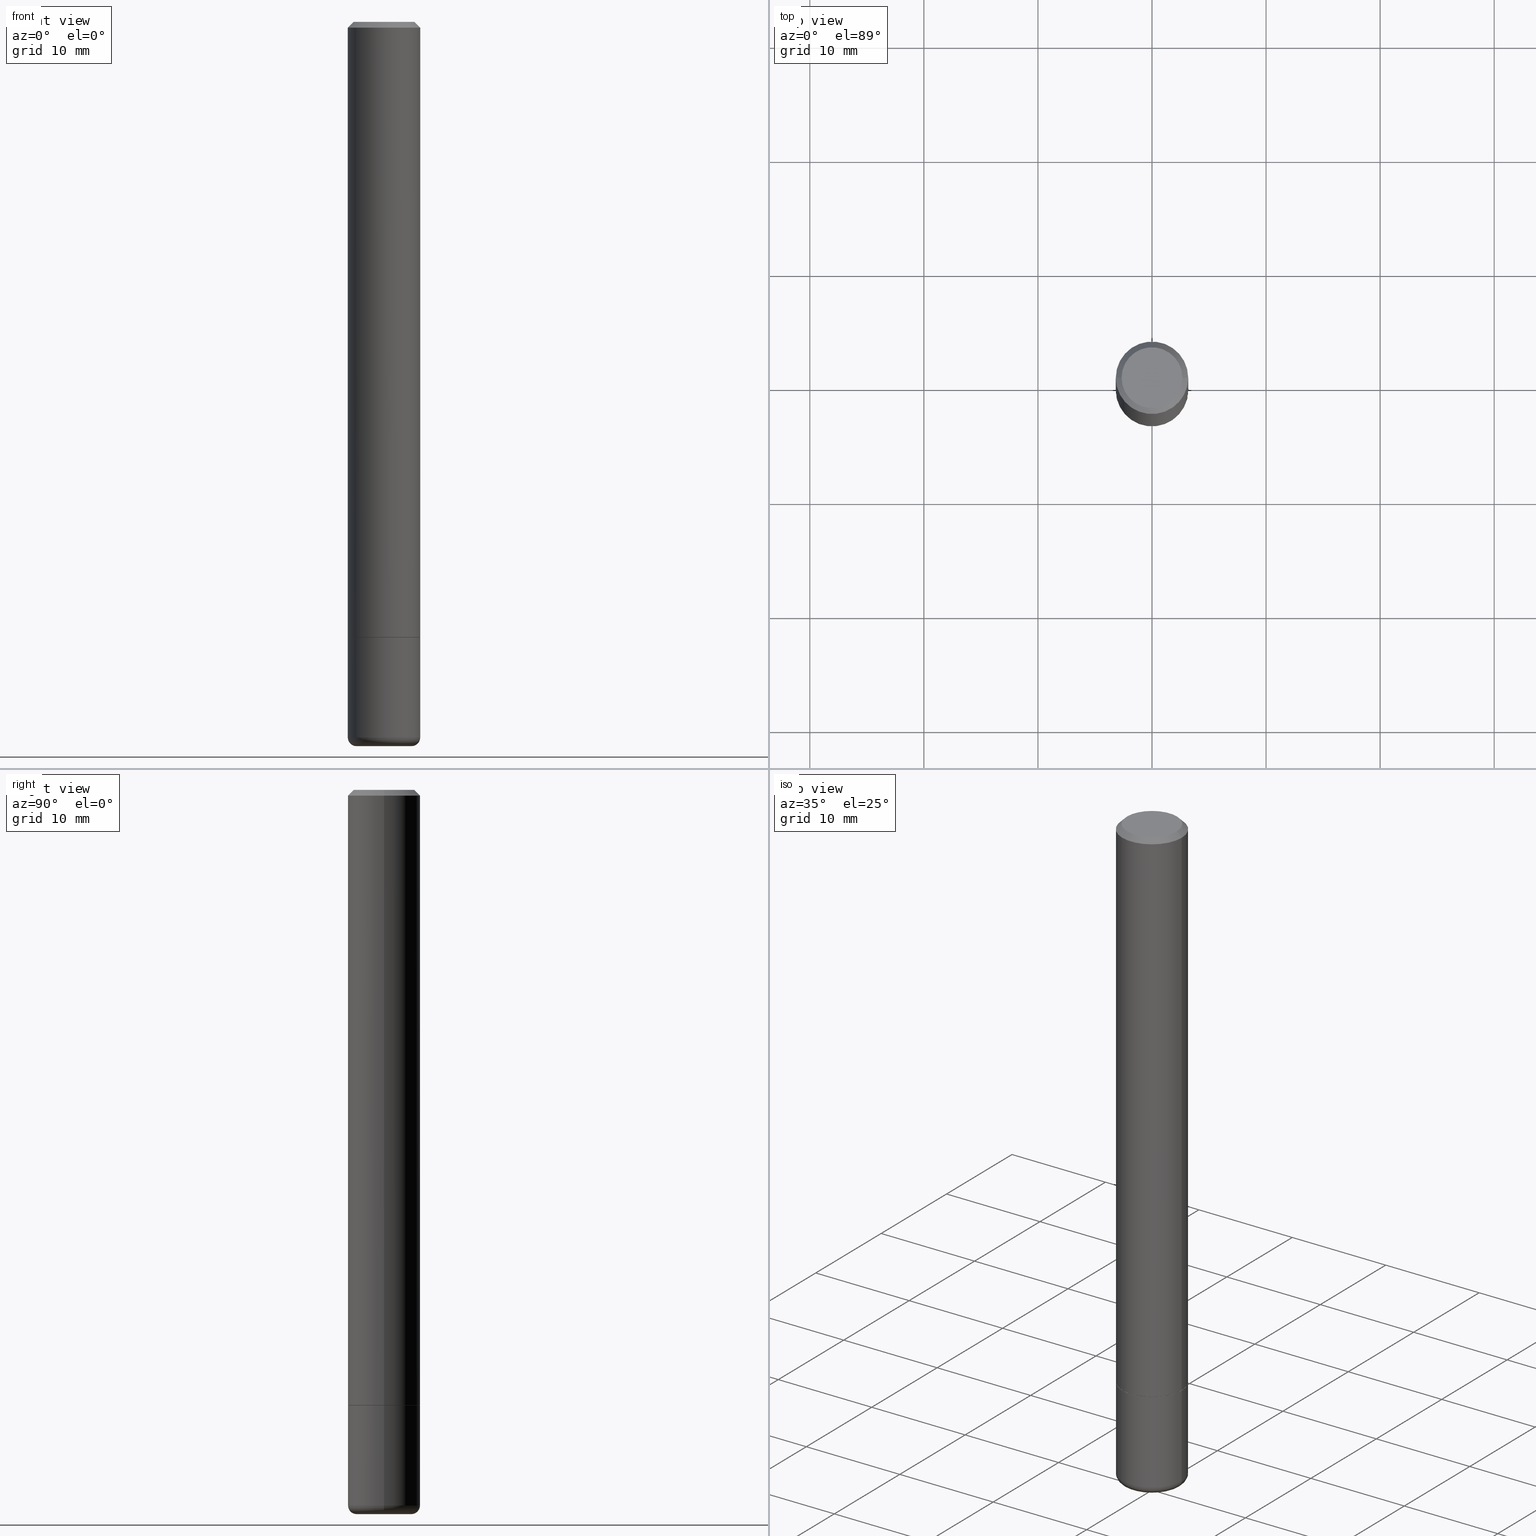
[diagram: canonical four-view strip — front | top / right | iso, engineering-drawing reading convention]
A machine part, canonical four-view strip (front | top / right | iso — engineering-drawing reading convention). The complete STEP part file that produces these views, byte-faithful:
ISO-10303-21;
HEADER;
FILE_DESCRIPTION (( 'STEP AP203' ),
    '1' );
FILE_NAME ('35577.STEP',
    '2022-11-02T20:21:32',
    ( '' ),
    ( '' ),
    'SwSTEP 2.0',
    'SolidWorks 2022',
    '' );
FILE_SCHEMA (( 'CONFIG_CONTROL_DESIGN' ));
ENDSEC;

DATA;
#1 = AXIS2_PLACEMENT_3D ( 'NONE', #217, #142, #222 ) ;
#2 = DIRECTION ( 'NONE',  ( -6.982962677686266711E-15, -1.000000000000000000, 3.491481338843145583E-15 ) ) ;
#3 = DIRECTION ( 'NONE',  ( -2.445468806185136597E-29, 3.491481338843145583E-15, 1.000000000000000000 ) ) ;
#4 = APPROVAL ( #471, 'UNSPECIFIED' ) ;
#5 = DIRECTION ( 'NONE',  ( 1.000000000000000000, -6.982962677686263555E-15, 0.000000000000000000 ) ) ;
#6 = CARTESIAN_POINT ( 'NONE',  ( 5.196621213143416389E-29, -7.419397845041686779E-15, -2.125000000000000888 ) ) ;
#7 = AXIS2_PLACEMENT_3D ( 'NONE', #277, #425, #91 ) ;
#8 = DIRECTION ( 'NONE',  ( 1.000000000000000000, -6.982962677686263555E-15, 0.000000000000000000 ) ) ;
#9 = EDGE_CURVE ( 'NONE', #301, #95, #69, .T. ) ;
#10 = EDGE_CURVE ( 'NONE', #141, #55, #275, .T. ) ;
#11 = ORIENTED_EDGE ( 'NONE', *, *, #118, .F. ) ;
#12 = DATE_AND_TIME ( #384, #199 ) ;
#13 = DIRECTION ( 'NONE',  ( 0.7071067811863059882, -2.468850131079726789E-15, 0.7071067811867890462 ) ) ;
#14 = ORIENTED_EDGE ( 'NONE', *, *, #78, .F. ) ;
#15 = PERSON_AND_ORGANIZATION ( #113, #268 ) ;
#16 = DIRECTION ( 'NONE',  ( 1.000000000000000000, -6.982962677686265922E-15, 4.876176775795935793E-29 ) ) ;
#17 = CIRCLE ( 'NONE', #229, 0.1239999999999995550 ) ;
#18 = ORIENTED_EDGE ( 'NONE', *, *, #249, .T. ) ;
#19 = CIRCLE ( 'NONE', #129, 0.08140570393504910351 ) ;
#20 = CARTESIAN_POINT ( 'NONE',  ( 0.000000000000000000, 0.000000000000000000, 0.000000000000000000 ) ) ;
#21 = ORIENTED_EDGE ( 'NONE', *, *, #249, .F. ) ;
#22 = DATE_TIME_ROLE ( 'creation_date' ) ;
#23 = EDGE_CURVE ( 'NONE', #394, #76, #346, .T. ) ;
#24 = CARTESIAN_POINT ( 'NONE',  ( 0.000000000000000000, 0.000000000000000000, 0.000000000000000000 ) ) ;
#25 = ORIENTED_EDGE ( 'NONE', *, *, #326, .T. ) ;
#26 = MECHANICAL_CONTEXT ( 'NONE', #379, 'mechanical' ) ;
#27 = CARTESIAN_POINT ( 'NONE',  ( 5.196621213143416389E-29, -7.419397845041686779E-15, -2.125000000000000888 ) ) ;
#28 = VERTEX_POINT ( 'NONE', #307 ) ;
#29 = VECTOR ( 'NONE', #467, 39.37007874015748854 ) ;
#30 = DIRECTION ( 'NONE',  ( -1.000000000000000000, 6.982962677686265922E-15, -4.876176775795935793E-29 ) ) ;
#31 = EDGE_LOOP ( 'NONE', ( #106, #186, #176, #388 ) ) ;
#32 = ORIENTED_EDGE ( 'NONE', *, *, #460, .T. ) ;
#33 = CARTESIAN_POINT ( 'NONE',  ( 1.148236555768741665E-45, -1.639377487418492057E-31, -4.695363739110452099E-17 ) ) ;
#34 = APPROVAL_DATE_TIME ( #136, #66 ) ;
#35 = CARTESIAN_POINT ( 'NONE',  ( -0.08140570393504910351, -8.159844117556212777E-15, -2.499883649035179900 ) ) ;
#36 = ORIENTED_EDGE ( 'NONE', *, *, #9, .F. ) ;
#37 = CIRCLE ( 'NONE', #1, 0.1249999999999992090 ) ;
#38 = ORIENTED_EDGE ( 'NONE', *, *, #334, .F. ) ;
#39 = EDGE_LOOP ( 'NONE', ( #38, #11 ) ) ;
#40 = EDGE_CURVE ( 'NONE', #398, #141, #415, .T. ) ;
#41 = DIRECTION ( 'NONE',  ( -1.000000000000000000, 6.982962677686263555E-15, 0.000000000000000000 ) ) ;
#42 = DIRECTION ( 'NONE',  ( 2.445468806185136597E-29, -3.491481338843145583E-15, -1.000000000000000000 ) ) ;
#43 = DIRECTION ( 'NONE',  ( -1.000000000000000000, 6.982962677686265922E-15, -4.876176775795935793E-29 ) ) ;
#44 = ADVANCED_FACE ( 'NONE', ( #194 ), #167, .T. ) ;
#45 = AXIS2_PLACEMENT_3D ( 'NONE', #455, #120, #306 ) ;
#46 = VERTEX_POINT ( 'NONE', #119 ) ;
#47 = DIRECTION ( 'NONE',  ( 2.445468806185136597E-29, -3.491481338843145583E-15, -1.000000000000000000 ) ) ;
#48 = DIRECTION ( 'NONE',  ( 1.000000000000000000, -6.982962677686264344E-15, 0.000000000000000000 ) ) ;
#49 = CIRCLE ( 'NONE', #230, 0.1249999999999992090 ) ;
#50 = AXIS2_PLACEMENT_3D ( 'NONE', #273, #197, #348 ) ;
#51 = DIRECTION ( 'NONE',  ( -2.445468806185136597E-29, 3.491481338843145583E-15, 1.000000000000000000 ) ) ;
#52 = CALENDAR_DATE ( 2022, 2, 11 ) ;
#53 = LINE ( 'NONE', #389, #332 ) ;
#54 = ORIENTED_EDGE ( 'NONE', *, *, #324, .F. ) ;
#55 = VERTEX_POINT ( 'NONE', #85 ) ;
#56 = DATE_AND_TIME ( #52, #177 ) ;
#57 = CARTESIAN_POINT ( 'NONE',  ( 1.148236555768741665E-45, -1.639377487418492057E-31, -4.695363739110452099E-17 ) ) ;
#58 = VECTOR ( 'NONE', #470, 39.37007874015748143 ) ;
#59 = EDGE_CURVE ( 'NONE', #95, #141, #201, .T. ) ;
#60 = EDGE_CURVE ( 'NONE', #141, #398, #111, .T. ) ;
#61 = LINE ( 'NONE', #428, #375 ) ;
#62 = ORIENTED_EDGE ( 'NONE', *, *, #416, .T. ) ;
#63 = DIRECTION ( 'NONE',  ( -2.445468806185136597E-29, 3.491481338843145583E-15, 1.000000000000000000 ) ) ;
#64 = EDGE_LOOP ( 'NONE', ( #409, #32, #412 ) ) ;
#65 = DIRECTION ( 'NONE',  ( 1.000000000000000000, -6.982962677686266711E-15, 4.876176775795935232E-29 ) ) ;
#66 = APPROVAL ( #181, 'UNSPECIFIED' ) ;
#67 = ORIENTED_EDGE ( 'NONE', *, *, #210, .F. ) ;
#68 = FACE_OUTER_BOUND ( 'NONE', #212, .T. ) ;
#69 = CIRCLE ( 'NONE', #439, 0.09473820393504912840 ) ;
#70 = ORIENTED_EDGE ( 'NONE', *, *, #114, .T. ) ;
#71 = EDGE_LOOP ( 'NONE', ( #223, #364, #180, #487 ) ) ;
#72 = APPLICATION_CONTEXT ( 'configuration controlled 3d designs of mechanical parts and assemblies' ) ;
#73 = DIRECTION ( 'NONE',  ( 1.000000000000000000, -6.982962677686262766E-15, 4.883557194083111780E-29 ) ) ;
#74 = MANIFOLD_SOLID_BREP ( 'Body-Move/Copy2[2]', #193 ) ;
#75 = ORIENTED_EDGE ( 'NONE', *, *, #322, .F. ) ;
#76 = VERTEX_POINT ( 'NONE', #414 ) ;
#77 = EDGE_LOOP ( 'NONE', ( #316, #242, #21, #67 ) ) ;
#78 = EDGE_CURVE ( 'NONE', #55, #28, #284, .T. ) ;
#79 = AXIS2_PLACEMENT_3D ( 'NONE', #97, #387, #276 ) ;
#80 = CARTESIAN_POINT ( 'NONE',  ( 6.113672015462842613E-29, -8.728703347107864943E-15, -2.500000000000000000 ) ) ;
#81 = CARTESIAN_POINT ( 'NONE',  ( 6.113387482807804113E-29, -8.728297109885438444E-15, -2.499883649035179900 ) ) ;
#82 = FACE_OUTER_BOUND ( 'NONE', #452, .T. ) ;
#83 = APPROVAL_PERSON_ORGANIZATION ( #330, #4, #386 ) ;
#84 = DIRECTION ( 'NONE',  ( -1.000000000000000000, 6.982962677686263555E-15, 0.000000000000000000 ) ) ;
#85 = CARTESIAN_POINT ( 'NONE',  ( -0.1249999999999995559, -7.133501950465667053E-15, -2.125000000000000000 ) ) ;
#86 = CONICAL_SURFACE ( 'NONE', #250, 0.08140570393504910351, 1.535889741755006588 ) ;
#87 = CARTESIAN_POINT ( 'NONE',  ( 5.196621213143415268E-29, -7.419397845041685201E-15, -2.125000000000000000 ) ) ;
#88 = ORIENTED_EDGE ( 'NONE', *, *, #114, .F. ) ;
#89 = CC_DESIGN_PERSON_AND_ORGANIZATION_ASSIGNMENT ( #15, #165, ( #299 ) ) ;
#90 = COORDINATED_UNIVERSAL_TIME_OFFSET ( 5, 0, .BEHIND. ) ;
#91 = DIRECTION ( 'NONE',  ( 1.000000000000000000, -6.982962677686268288E-15, 0.000000000000000000 ) ) ;
#92 = AXIS2_PLACEMENT_3D ( 'NONE', #430, #363, #16 ) ;
#93 = CYLINDRICAL_SURFACE ( 'NONE', #198, 0.1249999999999993477 ) ;
#94 = DIRECTION ( 'NONE',  ( -1.000000000000000000, 6.982962677686267499E-15, 0.000000000000000000 ) ) ;
#95 = VERTEX_POINT ( 'NONE', #227 ) ;
#96 = COORDINATED_UNIVERSAL_TIME_OFFSET ( 5, 0, .BEHIND. ) ;
#97 = CARTESIAN_POINT ( 'NONE',  ( 6.040310744756052718E-29, -8.623962895289896214E-15, -2.470001142308074993 ) ) ;
#98 = CALENDAR_DATE ( 2022, 2, 11 ) ;
#99 = CARTESIAN_POINT ( 'NONE',  ( 0.1249999999999997918, -8.728703347107818597E-16, 6.095220969744909231E-30 ) ) ;
#100 = TOROIDAL_SURFACE ( 'NONE', #79, 0.09500000000000018152, 0.02999999999999982542 ) ;
#101 =( NAMED_UNIT ( * ) PLANE_ANGLE_UNIT ( ) SI_UNIT ( $, .RADIAN. ) );
#102 = DIRECTION ( 'NONE',  ( -2.445468806185136597E-29, 3.491481338843145583E-15, 1.000000000000000000 ) ) ;
#103 = EDGE_CURVE ( 'NONE', #464, #153, #475, .T. ) ;
#104 = DIRECTION ( 'NONE',  ( -1.000000000000000000, 6.982962677686267499E-15, 0.000000000000000000 ) ) ;
#105 = ORIENTED_EDGE ( 'NONE', *, *, #59, .T. ) ;
#106 = ORIENTED_EDGE ( 'NONE', *, *, #322, .T. ) ;
#107 = CARTESIAN_POINT ( 'NONE',  ( -0.1239999999999995550, -6.538324852699165710E-15, -2.125000000000000888 ) ) ;
#108 = VERTEX_POINT ( 'NONE', #310 ) ;
#109 = AXIS2_PLACEMENT_3D ( 'NONE', #206, #171, #354 ) ;
#110 = LINE ( 'NONE', #263, #156 ) ;
#111 = CIRCLE ( 'NONE', #50, 0.1250000000000000278 ) ;
#112 = APPROVAL_ROLE ( '' ) ;
#113 = PERSON ( 'UNSPECIFIED', 'UNSPECIFIED', 'UNSPECIFIED', ('UNSPECIFIED'), ('UNSPECIFIED'), ('UNSPECIFIED') ) ;
#114 = EDGE_CURVE ( 'NONE', #301, #398, #401, .T. ) ;
#115 = CARTESIAN_POINT ( 'NONE',  ( 5.196621213143416389E-29, -7.419397845041686779E-15, -2.125000000000000888 ) ) ;
#116 = APPROVAL_PERSON_ORGANIZATION ( #395, #151, #328 ) ;
#117 = DIRECTION ( 'NONE',  ( 1.000000000000000000, -6.982962677686257244E-15, 0.000000000000000000 ) ) ;
#118 = EDGE_CURVE ( 'NONE', #443, #302, #137, .T. ) ;
#119 = CARTESIAN_POINT ( 'NONE',  ( 0.1049999999999992190, -8.238720831321523396E-16, -4.695363739109907908E-17 ) ) ;
#120 = DIRECTION ( 'NONE',  ( -2.445468806185136597E-29, 3.491481338843145583E-15, 1.000000000000000000 ) ) ;
#121 = AXIS2_PLACEMENT_3D ( 'NONE', #57, #51, #244 ) ;
#122 = PRODUCT_DEFINITION_FORMATION_WITH_SPECIFIED_SOURCE ( 'ANY', '', #476, .NOT_KNOWN. ) ;
#123 = CARTESIAN_POINT ( 'NONE',  ( 6.113387482807804113E-29, -8.728297109885438444E-15, -2.499883649035179900 ) ) ;
#124 = FACE_OUTER_BOUND ( 'NONE', #257, .T. ) ;
#125 = CC_DESIGN_PERSON_AND_ORGANIZATION_ASSIGNMENT ( #424, #246, ( #174 ) ) ;
#126 = DIRECTION ( 'NONE',  ( -2.445468806185136597E-29, 3.491481338843145583E-15, 1.000000000000000000 ) ) ;
#127 = PERSON_AND_ORGANIZATION ( #113, #268 ) ;
#128 = FACE_OUTER_BOUND ( 'NONE', #224, .T. ) ;
#129 = AXIS2_PLACEMENT_3D ( 'NONE', #200, #352, #8 ) ;
#130 = DIRECTION ( 'NONE',  ( -2.445468806185136597E-29, 3.491481338843145583E-15, 1.000000000000000000 ) ) ;
#131 = CONICAL_SURFACE ( 'NONE', #293, 0.09473820393504912840, 1.562069680534929894 ) ;
#132 = DIRECTION ( 'NONE',  ( 1.000000000000000000, -6.982962677686265922E-15, 4.876176775795935793E-29 ) ) ;
#133 = CARTESIAN_POINT ( 'NONE',  ( 0.000000000000000000, 0.000000000000000000, 0.000000000000000000 ) ) ;
#134 = FACE_OUTER_BOUND ( 'NONE', #450, .T. ) ;
#135 = AXIS2_PLACEMENT_3D ( 'NONE', #406, #438, #104 ) ;
#136 = DATE_AND_TIME ( #291, #319 ) ;
#137 = CIRCLE ( 'NONE', #461, 0.1239999999999995550 ) ;
#138 = ADVANCED_FACE ( 'NONE', ( #344 ), #160, .F. ) ;
#139 = CARTESIAN_POINT ( 'NONE',  ( 7.332110811570524037E-16, 0.1049999999999992190, -3.900823592740798305E-16 ) ) ;
#140 = DIRECTION ( 'NONE',  ( 1.000000000000000000, -6.982962677686267499E-15, 4.874400871621274649E-29 ) ) ;
#141 = VERTEX_POINT ( 'NONE', #456 ) ;
#142 = DIRECTION ( 'NONE',  ( -2.445468806185136597E-29, 3.491481338843145583E-15, 1.000000000000000000 ) ) ;
#143 = LOCAL_TIME ( 16, 21, 32.00000000000000000, #96 ) ;
#144 = ADVANCED_FACE ( 'NONE', ( #82 ), #131, .F. ) ;
#145 = AXIS2_PLACEMENT_3D ( 'NONE', #150, #228, #5 ) ;
#146 = ADVANCED_FACE ( 'NONE', ( #226 ), #419, .F. ) ;
#147 = ORIENTED_EDGE ( 'NONE', *, *, #416, .F. ) ;
#148 = ORIENTED_EDGE ( 'NONE', *, *, #380, .F. ) ;
#149 = ORIENTED_EDGE ( 'NONE', *, *, #103, .T. ) ;
#150 = CARTESIAN_POINT ( 'NONE',  ( 6.113387482807804113E-29, -8.728297109885438444E-15, -2.499883649035179900 ) ) ;
#151 = APPROVAL ( #170, 'UNSPECIFIED' ) ;
#152 = TOROIDAL_SURFACE ( 'NONE', #426, 0.09500000000000018152, 0.02999999999999982542 ) ;
#153 = VERTEX_POINT ( 'NONE', #235 ) ;
#154 = DIRECTION ( 'NONE',  ( -2.445468806185136597E-29, 3.491481338843145583E-15, 1.000000000000000000 ) ) ;
#155 = CARTESIAN_POINT ( 'NONE',  ( 5.196621213143415268E-29, -7.419397845041685201E-15, -2.125000000000000000 ) ) ;
#156 = VECTOR ( 'NONE', #289, 39.37007874015748143 ) ;
#157 = ADVANCED_FACE ( 'NONE', ( #190 ), #86, .F. ) ;
#158 = DIRECTION ( 'NONE',  ( -2.445468806185136597E-29, 3.491481338843145583E-15, 1.000000000000000000 ) ) ;
#159 = ADVANCED_FACE ( 'NONE', ( #304 ), #219, .T. ) ;
#160 = CONICAL_SURFACE ( 'NONE', #323, 0.08140570393504910351, 1.535889741755006588 ) ;
#161 = CARTESIAN_POINT ( 'NONE',  ( 4.890937612370296805E-31, -6.982962677686323656E-17, -0.02000000000000009409 ) ) ;
#162 = EDGE_LOOP ( 'NONE', ( #18, #342 ) ) ;
#163 = APPROVAL_DATE_TIME ( #12, #151 ) ;
#164 = LINE ( 'NONE', #315, #29 ) ;
#165 = PERSON_AND_ORGANIZATION_ROLE ( 'classification_officer' ) ;
#166 = DIRECTION ( 'NONE',  ( -0.7071067811865465735, 2.468850131082246805E-15, -0.7071067811865484609 ) ) ;
#167 = CONICAL_SURFACE ( 'NONE', #321, 0.1239999999999995550, 0.7853981633971067744 ) ;
#168 = DIRECTION ( 'NONE',  ( -2.445468806185136597E-29, 3.491481338843145583E-15, 1.000000000000000000 ) ) ;
#169 = ORIENTED_EDGE ( 'NONE', *, *, #221, .T. ) ;
#170 = APPROVAL_STATUS ( 'not_yet_approved' ) ;
#171 = DIRECTION ( 'NONE',  ( 2.445468806185136597E-29, -3.491481338843145583E-15, -1.000000000000000000 ) ) ;
#172 = DIRECTION ( 'NONE',  ( 1.000000000000000000, -6.982962677686265922E-15, 4.876176775795935793E-29 ) ) ;
#173 = CARTESIAN_POINT ( 'NONE',  ( 0.1249999999999992090, -9.273918764982992215E-16, -0.02000000000000009409 ) ) ;
#174 = PRODUCT_DEFINITION ( 'UNKNOWN', '', #122, #453 ) ;
#175 = VECTOR ( 'NONE', #13, 39.37007874015748143 ) ;
#176 = ORIENTED_EDGE ( 'NONE', *, *, #437, .F. ) ;
#177 = LOCAL_TIME ( 16, 21, 32.00000000000000000, #90 ) ;
#178 = COORDINATED_UNIVERSAL_TIME_OFFSET ( 5, 0, .BEHIND. ) ;
#179 = DIRECTION ( 'NONE',  ( -2.445468806185136597E-29, 3.491481338843145583E-15, 1.000000000000000000 ) ) ;
#180 = ORIENTED_EDGE ( 'NONE', *, *, #370, .F. ) ;
#181 = APPROVAL_STATUS ( 'not_yet_approved' ) ;
#182 = DIRECTION ( 'NONE',  ( -2.445468806185136597E-29, 3.491481338843145583E-15, 1.000000000000000000 ) ) ;
#183 = ORIENTED_EDGE ( 'NONE', *, *, #210, .T. ) ;
#184 = EDGE_CURVE ( 'NONE', #108, #312, #53, .T. ) ;
#185 = CARTESIAN_POINT ( 'NONE',  ( 6.106435626793264299E-29, -8.718371701929425383E-15, -2.497040899212750187 ) ) ;
#186 = ORIENTED_EDGE ( 'NONE', *, *, #380, .T. ) ;
#187 = AXIS2_PLACEMENT_3D ( 'NONE', #24, #130, #325 ) ;
#188 = ORIENTED_EDGE ( 'NONE', *, *, #9, .T. ) ;
#189 = EDGE_CURVE ( 'NONE', #108, #46, #192, .T. ) ;
#190 = FACE_OUTER_BOUND ( 'NONE', #64, .T. ) ;
#191 = DIRECTION ( 'NONE',  ( -2.445468806185136877E-29, 3.491481338843145188E-15, 1.000000000000000000 ) ) ;
#192 = CIRCLE ( 'NONE', #121, 0.1049999999999992190 ) ;
#193 = CLOSED_SHELL ( 'NONE', ( #440, #239, #159, #234, #478, #44, #231, #457 ) ) ;
#194 = FACE_OUTER_BOUND ( 'NONE', #295, .T. ) ;
#195 = DIRECTION ( 'NONE',  ( 7.105427357601001859E-15, 1.000000000000000000, -3.491481338843145583E-15 ) ) ;
#196 = ADVANCED_FACE ( 'NONE', ( #205 ), #360, .T. ) ;
#197 = DIRECTION ( 'NONE',  ( -2.445468806185136597E-29, 3.491481338843145583E-15, 1.000000000000000000 ) ) ;
#198 = AXIS2_PLACEMENT_3D ( 'NONE', #133, #358, #172 ) ;
#199 = LOCAL_TIME ( 16, 21, 32.00000000000000000, #473 ) ;
#200 = CARTESIAN_POINT ( 'NONE',  ( 6.113387482807804113E-29, -8.728297109885438444E-15, -2.499883649035179900 ) ) ;
#201 = CIRCLE ( 'NONE', #270, 0.02999999999999981501 ) ;
#202 = APPLICATION_PROTOCOL_DEFINITION ( 'international standard', 'config_control_design', 1994, #72 ) ;
#203 = EDGE_CURVE ( 'NONE', #355, #394, #281, .T. ) ;
#204 =( NAMED_UNIT ( * ) SI_UNIT ( $, .STERADIAN. ) SOLID_ANGLE_UNIT ( ) );
#205 = FACE_OUTER_BOUND ( 'NONE', #259, .T. ) ;
#206 = CARTESIAN_POINT ( 'NONE',  ( 4.890937612370296805E-31, -6.982962677686323656E-17, -0.02000000000000009409 ) ) ;
#207 = VECTOR ( 'NONE', #432, 39.37007874015748143 ) ;
#208 = DIMENSIONAL_EXPONENTS ( 1.000000000000000000, 0.000000000000000000, 0.000000000000000000, 0.000000000000000000, 0.000000000000000000, 0.000000000000000000, 0.000000000000000000 ) ;
#209 = DIRECTION ( 'NONE',  ( 1.000000000000000000, 0.000000000000000000, 0.000000000000000000 ) ) ;
#210 = EDGE_CURVE ( 'NONE', #398, #28, #462, .T. ) ;
#211 = DIRECTION ( 'NONE',  ( 0.9999619230641714207, -6.890705306874825328E-15, -0.008726535498369011531 ) ) ;
#212 = EDGE_LOOP ( 'NONE', ( #298, #62, #75, #54 ) ) ;
#213 = APPLICATION_PROTOCOL_DEFINITION ( 'international standard', 'config_control_design', 1994, #379 ) ;
#214 = CC_DESIGN_PERSON_AND_ORGANIZATION_ASSIGNMENT ( #251, #283, ( #476 ) ) ;
#215 = CARTESIAN_POINT ( 'NONE',  ( 6.113672015462842613E-29, -8.728703347107864943E-15, -2.500000000000000000 ) ) ;
#216 = ADVANCED_BREP_SHAPE_REPRESENTATION ( '35577', ( #393, #74, #318 ), #480 ) ;
#217 = CARTESIAN_POINT ( 'NONE',  ( 4.890937612370296805E-31, -6.982962677686323656E-17, -0.02000000000000009409 ) ) ;
#218 = EDGE_LOOP ( 'NONE', ( #314, #265 ) ) ;
#219 = CONICAL_SURFACE ( 'NONE', #366, 0.1249999999999992090, 0.7853981633974469467 ) ;
#220 = DIRECTION ( 'NONE',  ( 1.000000000000000000, -6.982962677686263555E-15, 0.000000000000000000 ) ) ;
#221 = EDGE_CURVE ( 'NONE', #312, #369, #49, .T. ) ;
#222 = DIRECTION ( 'NONE',  ( 1.000000000000000000, -6.982962677686267499E-15, 0.000000000000000000 ) ) ;
#223 = ORIENTED_EDGE ( 'NONE', *, *, #23, .T. ) ;
#224 = EDGE_LOOP ( 'NONE', ( #390, #400, #405, #169 ) ) ;
#225 = VECTOR ( 'NONE', #356, 39.37007874015748143 ) ;
#226 = FACE_OUTER_BOUND ( 'NONE', #162, .T. ) ;
#227 = CARTESIAN_POINT ( 'NONE',  ( -0.09473820393504912840, -7.895666198323776938E-15, -2.500000000000000000 ) ) ;
#228 = DIRECTION ( 'NONE',  ( -2.445468806185136597E-29, 3.491481338843145583E-15, 1.000000000000000000 ) ) ;
#229 = AXIS2_PLACEMENT_3D ( 'NONE', #27, #102, #220 ) ;
#230 = AXIS2_PLACEMENT_3D ( 'NONE', #161, #241, #311 ) ;
#231 = ADVANCED_FACE ( 'NONE', ( #247 ), #472, .F. ) ;
#232 = DIRECTION ( 'NONE',  ( -1.000000000000000000, 6.982962677686267499E-15, 0.000000000000000000 ) ) ;
#233 = ADVANCED_FACE ( 'NONE', ( #124 ), #100, .T. ) ;
#234 = ADVANCED_FACE ( 'NONE', ( #128 ), #435, .T. ) ;
#235 = CARTESIAN_POINT ( 'NONE',  ( 0.1249999999999994865, -8.288776698413622377E-15, -2.124000000000000110 ) ) ;
#236 = CARTESIAN_POINT ( 'NONE',  ( 0.09473820393504912840, -9.390256689337342116E-15, -2.500000000000000000 ) ) ;
#237 = ORIENTED_EDGE ( 'NONE', *, *, #286, .F. ) ;
#238 = DATE_AND_TIME ( #98, #143 ) ;
#239 = ADVANCED_FACE ( 'NONE', ( #423 ), #279, .T. ) ;
#240 = LINE ( 'NONE', #385, #175 ) ;
#241 = DIRECTION ( 'NONE',  ( -2.445468806185136597E-29, 3.491481338843145583E-15, 1.000000000000000000 ) ) ;
#242 = ORIENTED_EDGE ( 'NONE', *, *, #10, .T. ) ;
#243 = CALENDAR_DATE ( 2022, 2, 11 ) ;
#244 = DIRECTION ( 'NONE',  ( 1.000000000000000000, -6.982962677686267499E-15, 4.874400871621274649E-29 ) ) ;
#245 = EDGE_LOOP ( 'NONE', ( #287, #339, #264, #353 ) ) ;
#246 = PERSON_AND_ORGANIZATION_ROLE ( 'creator' ) ;
#247 = FACE_OUTER_BOUND ( 'NONE', #39, .T. ) ;
#248 = VECTOR ( 'NONE', #329, 39.37007874015748143 ) ;
#249 = EDGE_CURVE ( 'NONE', #28, #55, #309, .T. ) ;
#250 = AXIS2_PLACEMENT_3D ( 'NONE', #81, #492, #84 ) ;
#251 = PERSON_AND_ORGANIZATION ( #113, #268 ) ;
#252 = DIRECTION ( 'NONE',  ( -2.445468806185136597E-29, 3.491481338843145583E-15, 1.000000000000000000 ) ) ;
#253 = ORIENTED_EDGE ( 'NONE', *, *, #60, .F. ) ;
#254 = ORIENTED_EDGE ( 'NONE', *, *, #103, .F. ) ;
#255 = ORIENTED_EDGE ( 'NONE', *, *, #59, .F. ) ;
#256 = LINE ( 'NONE', #367, #404 ) ;
#257 = EDGE_LOOP ( 'NONE', ( #255, #397, #70, #253 ) ) ;
#258 = FACE_OUTER_BOUND ( 'NONE', #77, .T. ) ;
#259 = EDGE_LOOP ( 'NONE', ( #446, #282, #183, #14 ) ) ;
#260 = CONICAL_SURFACE ( 'NONE', #135, 0.09473820393504912840, 1.562069680534929894 ) ;
#261 = PERSON_AND_ORGANIZATION ( #113, #268 ) ;
#262 = CLOSED_SHELL ( 'NONE', ( #477, #422, #372, #157, #138, #146, #196, #233, #144 ) ) ;
#263 = CARTESIAN_POINT ( 'NONE',  ( 0.08140570393504910351, -9.286780778739024445E-15, -2.499883649035179900 ) ) ;
#264 = ORIENTED_EDGE ( 'NONE', *, *, #437, .T. ) ;
#265 = ORIENTED_EDGE ( 'NONE', *, *, #408, .T. ) ;
#266 = UNCERTAINTY_MEASURE_WITH_UNIT (LENGTH_MEASURE( 1.000000000000000082E-05 ), #434, 'distance_accuracy_value', 'NONE');
#267 = CARTESIAN_POINT ( 'NONE',  ( 6.113672015462842613E-29, -8.728703347107864943E-15, -2.500000000000000000 ) ) ;
#268 = ORGANIZATION ( 'UNSPECIFIED', 'UNSPECIFIED', '' ) ;
#269 = EDGE_CURVE ( 'NONE', #153, #369, #392, .T. ) ;
#270 = AXIS2_PLACEMENT_3D ( 'NONE', #271, #195, #272 ) ;
#271 = CARTESIAN_POINT ( 'NONE',  ( -0.09500000000000018152, -7.948947296317799649E-15, -2.470001142308074993 ) ) ;
#272 = DIRECTION ( 'NONE',  ( -1.000000000000000000, 7.105427357601001859E-15, 0.000000000000000000 ) ) ;
#273 = CARTESIAN_POINT ( 'NONE',  ( 6.040310744756052718E-29, -8.623962895289896214E-15, -2.470001142308074993 ) ) ;
#274 = AXIS2_PLACEMENT_3D ( 'NONE', #87, #126, #48 ) ;
#275 = LINE ( 'NONE', #454, #361 ) ;
#276 = DIRECTION ( 'NONE',  ( 1.000000000000000000, -6.982962677686262766E-15, 4.883557194083111780E-29 ) ) ;
#277 = CARTESIAN_POINT ( 'NONE',  ( 5.194175744337230786E-29, -7.415906363702842194E-15, -2.124000000000000110 ) ) ;
#278 = SECURITY_CLASSIFICATION_LEVEL ( 'unclassified' ) ;
#279 = CYLINDRICAL_SURFACE ( 'NONE', #382, 0.1249999999999993477 ) ;
#280 = PERSON_AND_ORGANIZATION_ROLE ( 'design_supplier' ) ;
#281 = LINE ( 'NONE', #320, #58 ) ;
#282 = ORIENTED_EDGE ( 'NONE', *, *, #60, .T. ) ;
#283 = PERSON_AND_ORGANIZATION_ROLE ( 'design_owner' ) ;
#284 = CIRCLE ( 'NONE', #411, 0.1249999999999995559 ) ;
#285 = CARTESIAN_POINT ( 'NONE',  ( 0.1249999999999993477, -8.728703347107787043E-16, 6.095220969744888212E-30 ) ) ;
#286 = EDGE_CURVE ( 'NONE', #76, #301, #61, .T. ) ;
#287 = ORIENTED_EDGE ( 'NONE', *, *, #408, .F. ) ;
#288 =( LENGTH_UNIT ( ) NAMED_UNIT ( * ) SI_UNIT ( $, .METRE. ) );
#289 = DIRECTION ( 'NONE',  ( 0.9993908270190955401, -6.978169709227551743E-15, -0.03489949670250441088 ) ) ;
#290 = AXIS2_PLACEMENT_3D ( 'NONE', #139, #447, #30 ) ;
#291 = CALENDAR_DATE ( 2022, 2, 11 ) ;
#292 = CARTESIAN_POINT ( 'NONE',  ( -0.1249999999999994865, -2.854689575539726725E-15, -2.124000000000000110 ) ) ;
#293 = AXIS2_PLACEMENT_3D ( 'NONE', #80, #47, #232 ) ;
#294 = DIRECTION ( 'NONE',  ( 0.7071067811865465735, -7.319954787623252890E-15, -0.7071067811865484609 ) ) ;
#295 = EDGE_LOOP ( 'NONE', ( #147, #483, #491, #254 ) ) ;
#296 = FACE_OUTER_BOUND ( 'NONE', #218, .T. ) ;
#297 = CONICAL_SURFACE ( 'NONE', #468, 0.1239999999999995550, 0.7853981633971067744 ) ;
#298 = ORIENTED_EDGE ( 'NONE', *, *, #334, .T. ) ;
#299 = SECURITY_CLASSIFICATION ( '', '', #278 ) ;
#300 = ORIENTED_EDGE ( 'NONE', *, *, #203, .T. ) ;
#301 = VERTEX_POINT ( 'NONE', #236 ) ;
#302 = VERTEX_POINT ( 'NONE', #381 ) ;
#303 = EDGE_CURVE ( 'NONE', #76, #394, #19, .T. ) ;
#304 = FACE_OUTER_BOUND ( 'NONE', #245, .T. ) ;
#305 = AXIS2_PLACEMENT_3D ( 'NONE', #33, #252, #140 ) ;
#306 = DIRECTION ( 'NONE',  ( 1.000000000000000000, -6.982962677686261189E-15, 0.000000000000000000 ) ) ;
#307 = CARTESIAN_POINT ( 'NONE',  ( 0.1249999999999995559, -8.292268179752463807E-15, -2.125000000000000000 ) ) ;
#308 = CARTESIAN_POINT ( 'NONE',  ( 0.09500000000000018152, -9.287344349670094392E-15, -2.470001142308074993 ) ) ;
#309 = CIRCLE ( 'NONE', #274, 0.1249999999999995559 ) ;
#310 = CARTESIAN_POINT ( 'NONE',  ( -0.1049999999999992190, 7.681258945454834611E-16, -4.695363739110977184E-17 ) ) ;
#311 = DIRECTION ( 'NONE',  ( 1.000000000000000000, -6.982962677686267499E-15, 0.000000000000000000 ) ) ;
#312 = VERTEX_POINT ( 'NONE', #463 ) ;
#313 = PERSON_AND_ORGANIZATION ( #113, #268 ) ;
#314 = ORIENTED_EDGE ( 'NONE', *, *, #189, .T. ) ;
#315 = CARTESIAN_POINT ( 'NONE',  ( -0.09473820393504912840, -8.067150004878386191E-15, -2.500000000000000000 ) ) ;
#316 = ORIENTED_EDGE ( 'NONE', *, *, #40, .T. ) ;
#317 = COORDINATED_UNIVERSAL_TIME_OFFSET ( 5, 0, .BEHIND. ) ;
#318 = AXIS2_PLACEMENT_3D ( 'NONE', #429, #431, #209 ) ;
#319 = LOCAL_TIME ( 16, 21, 32.00000000000000000, #178 ) ;
#320 = CARTESIAN_POINT ( 'NONE',  ( -0.08140570393504910351, -8.159844117556212777E-15, -2.499883649035179900 ) ) ;
#321 = AXIS2_PLACEMENT_3D ( 'NONE', #6, #378, #349 ) ;
#322 = EDGE_CURVE ( 'NONE', #153, #464, #350, .T. ) ;
#323 = AXIS2_PLACEMENT_3D ( 'NONE', #123, #418, #41 ) ;
#324 = EDGE_CURVE ( 'NONE', #302, #153, #240, .T. ) ;
#325 = DIRECTION ( 'NONE',  ( 1.000000000000000000, -6.982962677686266711E-15, 4.876176775795935232E-29 ) ) ;
#326 = EDGE_CURVE ( 'NONE', #394, #95, #164, .T. ) ;
#327 = EDGE_LOOP ( 'NONE', ( #148, #149, #486, #444 ) ) ;
#328 = APPROVAL_ROLE ( '' ) ;
#329 = DIRECTION ( 'NONE',  ( -0.7071067811863059882, 7.493145998869481680E-15, 0.7071067811867890462 ) ) ;
#330 = PERSON_AND_ORGANIZATION ( #113, #268 ) ;
#331 = PLANE ( 'NONE',  #290 ) ;
#332 = VECTOR ( 'NONE', #166, 39.37007874015748143 ) ;
#333 = APPROVAL_PERSON_ORGANIZATION ( #261, #66, #112 ) ;
#334 = EDGE_CURVE ( 'NONE', #302, #443, #17, .T. ) ;
#335 = ORIENTED_EDGE ( 'NONE', *, *, #460, .F. ) ;
#336 = LINE ( 'NONE', #482, #489 ) ;
#337 = ORIENTED_EDGE ( 'NONE', *, *, #40, .F. ) ;
#338 = CARTESIAN_POINT ( 'NONE',  ( 5.196621213143416389E-29, -7.419397845041686779E-15, -2.125000000000000888 ) ) ;
#339 = ORIENTED_EDGE ( 'NONE', *, *, #357, .T. ) ;
#340 = CARTESIAN_POINT ( 'NONE',  ( 0.000000000000000000, 0.000000000000000000, 0.000000000000000000 ) ) ;
#341 = AXIS2_PLACEMENT_3D ( 'NONE', #215, #179, #365 ) ;
#342 = ORIENTED_EDGE ( 'NONE', *, *, #78, .T. ) ;
#343 = CC_DESIGN_PERSON_AND_ORGANIZATION_ASSIGNMENT ( #313, #466, ( #122 ) ) ;
#344 = FACE_OUTER_BOUND ( 'NONE', #433, .T. ) ;
#345 = DIRECTION ( 'NONE',  ( 1.000000000000000000, -6.982962677686264344E-15, 0.000000000000000000 ) ) ;
#346 = CIRCLE ( 'NONE', #145, 0.08140570393504910351 ) ;
#347 = DIRECTION ( 'NONE',  ( 1.000000000000000000, -6.982962677686268288E-15, 0.000000000000000000 ) ) ;
#348 = DIRECTION ( 'NONE',  ( 1.000000000000000000, -6.982962677686261189E-15, 0.000000000000000000 ) ) ;
#349 = DIRECTION ( 'NONE',  ( 1.000000000000000000, -6.982962677686263555E-15, 0.000000000000000000 ) ) ;
#350 = CIRCLE ( 'NONE', #7, 0.1249999999999994865 ) ;
#351 = CC_DESIGN_PERSON_AND_ORGANIZATION_ASSIGNMENT ( #127, #280, ( #122 ) ) ;
#352 = DIRECTION ( 'NONE',  ( -2.445468806185136597E-29, 3.491481338843145583E-15, 1.000000000000000000 ) ) ;
#353 = ORIENTED_EDGE ( 'NONE', *, *, #184, .F. ) ;
#354 = DIRECTION ( 'NONE',  ( -1.000000000000000000, 6.982962677686267499E-15, 0.000000000000000000 ) ) ;
#355 = VERTEX_POINT ( 'NONE', #185 ) ;
#356 = DIRECTION ( 'NONE',  ( -2.445468806185136877E-29, 3.491481338843145188E-15, 1.000000000000000000 ) ) ;
#357 = EDGE_CURVE ( 'NONE', #46, #369, #256, .T. ) ;
#358 = DIRECTION ( 'NONE',  ( -2.445468806185136597E-29, 3.491481338843145583E-15, 1.000000000000000000 ) ) ;
#359 = AXIS2_PLACEMENT_3D ( 'NONE', #340, #445, #65 ) ;
#360 = CYLINDRICAL_SURFACE ( 'NONE', #187, 0.1249999999999997918 ) ;
#361 = VECTOR ( 'NONE', #191, 39.37007874015748143 ) ;
#362 = APPROVAL_DATE_TIME ( #238, #4 ) ;
#363 = DIRECTION ( 'NONE',  ( -2.438088387897960049E-29, 3.491481338843145188E-15, 1.000000000000000000 ) ) ;
#364 = ORIENTED_EDGE ( 'NONE', *, *, #286, .T. ) ;
#365 = DIRECTION ( 'NONE',  ( 1.000000000000000000, -6.982962677686257244E-15, 0.000000000000000000 ) ) ;
#366 = AXIS2_PLACEMENT_3D ( 'NONE', #373, #42, #94 ) ;
#367 = CARTESIAN_POINT ( 'NONE',  ( 0.1249999999999992090, -9.273918764982992215E-16, -0.02000000000000009409 ) ) ;
#368 = LINE ( 'NONE', #107, #248 ) ;
#369 = VERTEX_POINT ( 'NONE', #173 ) ;
#370 = EDGE_CURVE ( 'NONE', #95, #301, #391, .T. ) ;
#371 = CARTESIAN_POINT ( 'NONE',  ( 5.194175744337230786E-29, -7.415906363702842194E-15, -2.124000000000000110 ) ) ;
#372 = ADVANCED_FACE ( 'NONE', ( #258 ), #403, .T. ) ;
#373 = CARTESIAN_POINT ( 'NONE',  ( 4.890937612370296805E-31, -6.982962677686323656E-17, -0.02000000000000009409 ) ) ;
#374 = CARTESIAN_POINT ( 'NONE',  ( 8.728703347108319524E-16, 0.1249999999999921313, -2.125000000000000888 ) ) ;
#375 = VECTOR ( 'NONE', #211, 39.37007874015748854 ) ;
#376 = DIRECTION ( 'NONE',  ( 1.000000000000000000, -6.982962677686246200E-15, 0.000000000000000000 ) ) ;
#377 = AXIS2_PLACEMENT_3D ( 'NONE', #374, #421, #43 ) ;
#378 = DIRECTION ( 'NONE',  ( -2.445468806185136597E-29, 3.491481338843145583E-15, 1.000000000000000000 ) ) ;
#379 = APPLICATION_CONTEXT ( 'configuration controlled 3d designs of mechanical parts and assemblies' ) ;
#380 = EDGE_CURVE ( 'NONE', #464, #312, #336, .T. ) ;
#381 = CARTESIAN_POINT ( 'NONE',  ( 0.1239999999999995550, -8.285285217074779370E-15, -2.125000000000000888 ) ) ;
#382 = AXIS2_PLACEMENT_3D ( 'NONE', #20, #168, #132 ) ;
#383 = CC_DESIGN_APPROVAL ( #151, ( #122 ) ) ;
#384 = CALENDAR_DATE ( 2022, 2, 11 ) ;
#385 = CARTESIAN_POINT ( 'NONE',  ( 0.1239999999999995550, -8.285285217074779370E-15, -2.125000000000000888 ) ) ;
#386 = APPROVAL_ROLE ( '' ) ;
#387 = DIRECTION ( 'NONE',  ( -2.445468806185136597E-29, 3.491481338843145583E-15, 1.000000000000000000 ) ) ;
#388 = ORIENTED_EDGE ( 'NONE', *, *, #269, .F. ) ;
#389 = CARTESIAN_POINT ( 'NONE',  ( -0.1249999999999992090, 8.030407079339147158E-16, -0.02000000000000009409 ) ) ;
#390 = ORIENTED_EDGE ( 'NONE', *, *, #357, .F. ) ;
#391 = CIRCLE ( 'NONE', #341, 0.09473820393504912840 ) ;
#392 = LINE ( 'NONE', #285, #207 ) ;
#393 = MANIFOLD_SOLID_BREP ( 'Body-Move/Copy2[1]', #262 ) ;
#394 = VERTEX_POINT ( 'NONE', #35 ) ;
#395 = PERSON_AND_ORGANIZATION ( #113, #268 ) ;
#396 = CARTESIAN_POINT ( 'NONE',  ( 6.040310744756052718E-29, -8.623962895289896214E-15, -2.470001142308074993 ) ) ;
#397 = ORIENTED_EDGE ( 'NONE', *, *, #370, .T. ) ;
#398 = VERTEX_POINT ( 'NONE', #490 ) ;
#399 = FACE_OUTER_BOUND ( 'NONE', #327, .T. ) ;
#400 = ORIENTED_EDGE ( 'NONE', *, *, #189, .F. ) ;
#401 = CIRCLE ( 'NONE', #402, 0.02999999999999981501 ) ;
#402 = AXIS2_PLACEMENT_3D ( 'NONE', #308, #2, #376 ) ;
#403 = CYLINDRICAL_SURFACE ( 'NONE', #359, 0.1249999999999997918 ) ;
#404 = VECTOR ( 'NONE', #294, 39.37007874015748143 ) ;
#405 = ORIENTED_EDGE ( 'NONE', *, *, #184, .T. ) ;
#406 = CARTESIAN_POINT ( 'NONE',  ( 6.113672015462842613E-29, -8.728703347107864943E-15, -2.500000000000000000 ) ) ;
#407 = ORIENTED_EDGE ( 'NONE', *, *, #303, .T. ) ;
#408 = EDGE_CURVE ( 'NONE', #46, #108, #459, .T. ) ;
#409 = ORIENTED_EDGE ( 'NONE', *, *, #203, .F. ) ;
#410 = CC_DESIGN_DATE_AND_TIME_ASSIGNMENT ( #484, #451, ( #299 ) ) ;
#411 = AXIS2_PLACEMENT_3D ( 'NONE', #155, #158, #345 ) ;
#412 = ORIENTED_EDGE ( 'NONE', *, *, #23, .F. ) ;
#413 = AXIS2_PLACEMENT_3D ( 'NONE', #371, #154, #347 ) ;
#414 = CARTESIAN_POINT ( 'NONE',  ( 0.08140570393504910351, -9.286780778739024445E-15, -2.499883649035179900 ) ) ;
#415 = CIRCLE ( 'NONE', #45, 0.1250000000000000278 ) ;
#416 = EDGE_CURVE ( 'NONE', #443, #464, #368, .T. ) ;
#417 = DIRECTION ( 'NONE',  ( -2.445468806185136597E-29, 3.491481338843145583E-15, 1.000000000000000000 ) ) ;
#418 = DIRECTION ( 'NONE',  ( 2.445468806185136597E-29, -3.491481338843145583E-15, -1.000000000000000000 ) ) ;
#419 = PLANE ( 'NONE',  #377 ) ;
#420 = CC_DESIGN_APPROVAL ( #4, ( #174 ) ) ;
#421 = DIRECTION ( 'NONE',  ( 2.438088387897960049E-29, -3.491481338843145188E-15, -1.000000000000000000 ) ) ;
#422 = ADVANCED_FACE ( 'NONE', ( #134 ), #152, .T. ) ;
#423 = FACE_OUTER_BOUND ( 'NONE', #31, .T. ) ;
#424 = PERSON_AND_ORGANIZATION ( #113, #268 ) ;
#425 = DIRECTION ( 'NONE',  ( -2.445468806185136597E-29, 3.491481338843145583E-15, 1.000000000000000000 ) ) ;
#426 = AXIS2_PLACEMENT_3D ( 'NONE', #396, #182, #73 ) ;
#427 = LENGTH_MEASURE_WITH_UNIT ( LENGTH_MEASURE( 0.02539999999999999897 ), #288 );
#428 = CARTESIAN_POINT ( 'NONE',  ( 0.09473820393504912840, -9.378654605516740396E-15, -2.500000000000000000 ) ) ;
#429 = CARTESIAN_POINT ( 'NONE',  ( 0.000000000000000000, 0.000000000000000000, 0.000000000000000000 ) ) ;
#430 = CARTESIAN_POINT ( 'NONE',  ( 5.196621213143416389E-29, -7.419397845041685201E-15, -2.125000000000000444 ) ) ;
#431 = DIRECTION ( 'NONE',  ( 0.000000000000000000, 0.000000000000000000, 1.000000000000000000 ) ) ;
#432 = DIRECTION ( 'NONE',  ( -2.445468806185136877E-29, 3.491481338843145188E-15, 1.000000000000000000 ) ) ;
#433 = EDGE_LOOP ( 'NONE', ( #335, #300, #479 ) ) ;
#434 =( CONVERSION_BASED_UNIT ( 'INCH', #427 ) LENGTH_UNIT ( ) NAMED_UNIT ( #208 ) );
#435 = CONICAL_SURFACE ( 'NONE', #109, 0.1249999999999992090, 0.7853981633974469467 ) ;
#436 = CC_DESIGN_APPROVAL ( #66, ( #299 ) ) ;
#437 = EDGE_CURVE ( 'NONE', #369, #312, #37, .T. ) ;
#438 = DIRECTION ( 'NONE',  ( 2.445468806185136597E-29, -3.491481338843145583E-15, -1.000000000000000000 ) ) ;
#439 = AXIS2_PLACEMENT_3D ( 'NONE', #267, #3, #117 ) ;
#440 = ADVANCED_FACE ( 'NONE', ( #68 ), #297, .T. ) ;
#441 = PRODUCT_DEFINITION_SHAPE ( 'NONE', 'NONE',  #174 ) ;
#442 = FACE_OUTER_BOUND ( 'NONE', #71, .T. ) ;
#443 = VERTEX_POINT ( 'NONE', #481 ) ;
#444 = ORIENTED_EDGE ( 'NONE', *, *, #221, .F. ) ;
#445 = DIRECTION ( 'NONE',  ( -2.445468806185136597E-29, 3.491481338843145583E-15, 1.000000000000000000 ) ) ;
#446 = ORIENTED_EDGE ( 'NONE', *, *, #10, .F. ) ;
#447 = DIRECTION ( 'NONE',  ( 2.438088387897960049E-29, -3.491481338843145188E-15, -1.000000000000000000 ) ) ;
#448 = CC_DESIGN_DATE_AND_TIME_ASSIGNMENT ( #56, #22, ( #174 ) ) ;
#449 = CC_DESIGN_SECURITY_CLASSIFICATION ( #299, ( #122 ) ) ;
#450 = EDGE_LOOP ( 'NONE', ( #188, #105, #337, #88 ) ) ;
#451 = DATE_TIME_ROLE ( 'classification_date' ) ;
#452 = EDGE_LOOP ( 'NONE', ( #237, #407, #25, #36 ) ) ;
#453 = DESIGN_CONTEXT ( 'detailed design', #72, 'design' ) ;
#454 = CARTESIAN_POINT ( 'NONE',  ( -0.1249999999999997918, 8.881784197001237532E-16, -6.148668862818622418E-30 ) ) ;
#455 = CARTESIAN_POINT ( 'NONE',  ( 6.040310744756052718E-29, -8.623962895289896214E-15, -2.470001142308074993 ) ) ;
#456 = CARTESIAN_POINT ( 'NONE',  ( -0.1250000000000000555, -7.133501950465663898E-15, -2.470001142308074993 ) ) ;
#457 = ADVANCED_FACE ( 'NONE', ( #296 ), #331, .F. ) ;
#458 = DIRECTION ( 'NONE',  ( 1.000000000000000000, -6.982962677686263555E-15, 0.000000000000000000 ) ) ;
#459 = CIRCLE ( 'NONE', #305, 0.1049999999999992190 ) ;
#460 = EDGE_CURVE ( 'NONE', #355, #76, #110, .T. ) ;
#461 = AXIS2_PLACEMENT_3D ( 'NONE', #115, #417, #458 ) ;
#462 = LINE ( 'NONE', #99, #225 ) ;
#463 = CARTESIAN_POINT ( 'NONE',  ( -0.1249999999999992090, 8.030407079339147158E-16, -0.02000000000000009409 ) ) ;
#464 = VERTEX_POINT ( 'NONE', #292 ) ;
#465 = PRODUCT_RELATED_PRODUCT_CATEGORY ( 'detail', '', ( #476 ) ) ;
#466 = PERSON_AND_ORGANIZATION_ROLE ( 'creator' ) ;
#467 = DIRECTION ( 'NONE',  ( -0.9999619230641714207, 6.952228252019186602E-15, -0.008726535498369011531 ) ) ;
#468 = AXIS2_PLACEMENT_3D ( 'NONE', #338, #63, #485 ) ;
#469 = LOCAL_TIME ( 16, 21, 32.00000000000000000, #317 ) ;
#470 = DIRECTION ( 'NONE',  ( -0.9993908270190955401, 6.856857904024544637E-15, -0.03489949670250441088 ) ) ;
#471 = APPROVAL_STATUS ( 'not_yet_approved' ) ;
#472 = PLANE ( 'NONE',  #92 ) ;
#473 = COORDINATED_UNIVERSAL_TIME_OFFSET ( 5, 0, .BEHIND. ) ;
#474 = DIRECTION ( 'NONE',  ( -2.445468806185136877E-29, 3.491481338843145188E-15, 1.000000000000000000 ) ) ;
#475 = CIRCLE ( 'NONE', #413, 0.1249999999999994865 ) ;
#476 = PRODUCT ( '35577', '35577', '', ( #26 ) ) ;
#477 = ADVANCED_FACE ( 'NONE', ( #442 ), #260, .F. ) ;
#478 = ADVANCED_FACE ( 'NONE', ( #399 ), #93, .T. ) ;
#479 = ORIENTED_EDGE ( 'NONE', *, *, #303, .F. ) ;
#480 =( GEOMETRIC_REPRESENTATION_CONTEXT ( 3 ) GLOBAL_UNCERTAINTY_ASSIGNED_CONTEXT ( ( #266 ) ) GLOBAL_UNIT_ASSIGNED_CONTEXT ( ( #434, #101, #204 ) ) REPRESENTATION_CONTEXT ( 'NONE', 'WORKASPACE' ) );
#481 = CARTESIAN_POINT ( 'NONE',  ( -0.1239999999999995550, -6.533026398350942519E-15, -2.125000000000000888 ) ) ;
#482 = CARTESIAN_POINT ( 'NONE',  ( -0.1249999999999993477, 8.881784197001205978E-16, -6.148668862818600698E-30 ) ) ;
#483 = ORIENTED_EDGE ( 'NONE', *, *, #118, .T. ) ;
#484 = DATE_AND_TIME ( #243, #469 ) ;
#485 = DIRECTION ( 'NONE',  ( 1.000000000000000000, -6.982962677686263555E-15, 0.000000000000000000 ) ) ;
#486 = ORIENTED_EDGE ( 'NONE', *, *, #269, .T. ) ;
#487 = ORIENTED_EDGE ( 'NONE', *, *, #326, .F. ) ;
#488 = SHAPE_DEFINITION_REPRESENTATION ( #441, #216 ) ;
#489 = VECTOR ( 'NONE', #474, 39.37007874015748143 ) ;
#490 = CARTESIAN_POINT ( 'NONE',  ( 0.1250000000000000278, -9.496833230000679553E-15, -2.470001142308074993 ) ) ;
#491 = ORIENTED_EDGE ( 'NONE', *, *, #324, .T. ) ;
#492 = DIRECTION ( 'NONE',  ( 2.445468806185136597E-29, -3.491481338843145583E-15, -1.000000000000000000 ) ) ;
ENDSEC;
END-ISO-10303-21;
